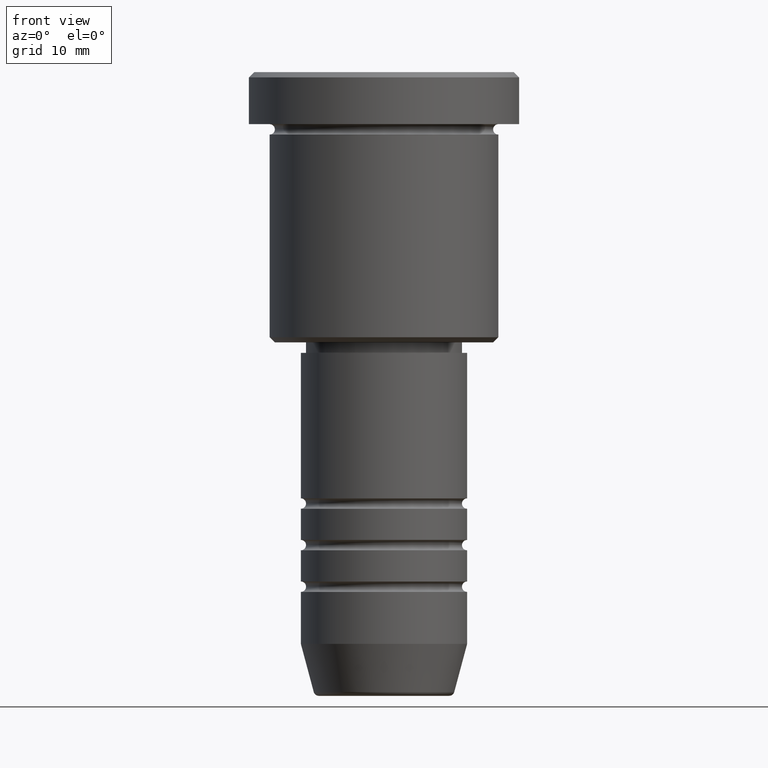
[diagram: clean part render]
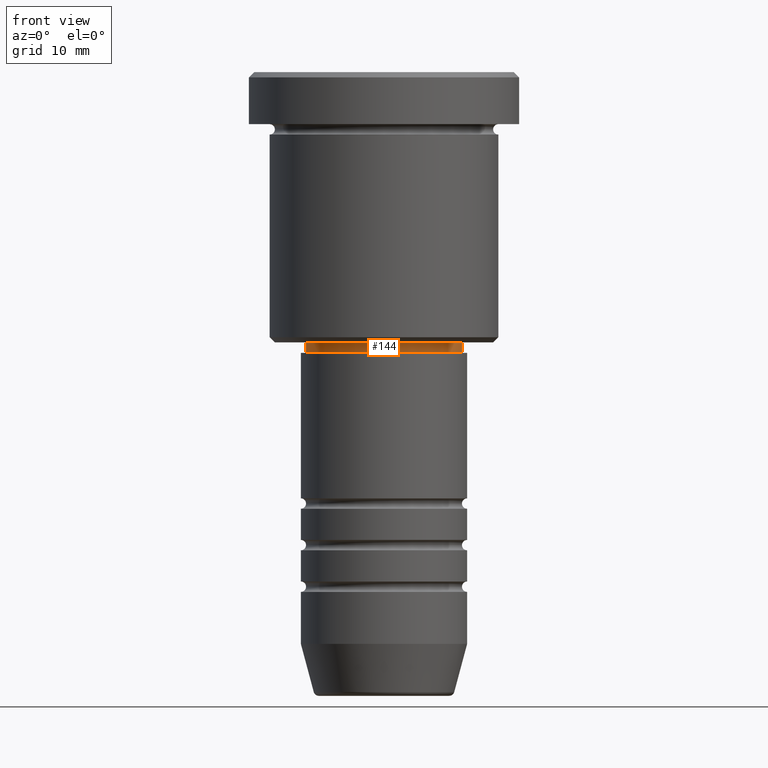
[diagram: same view with one face highlighted and labeled with its STEP entity id]
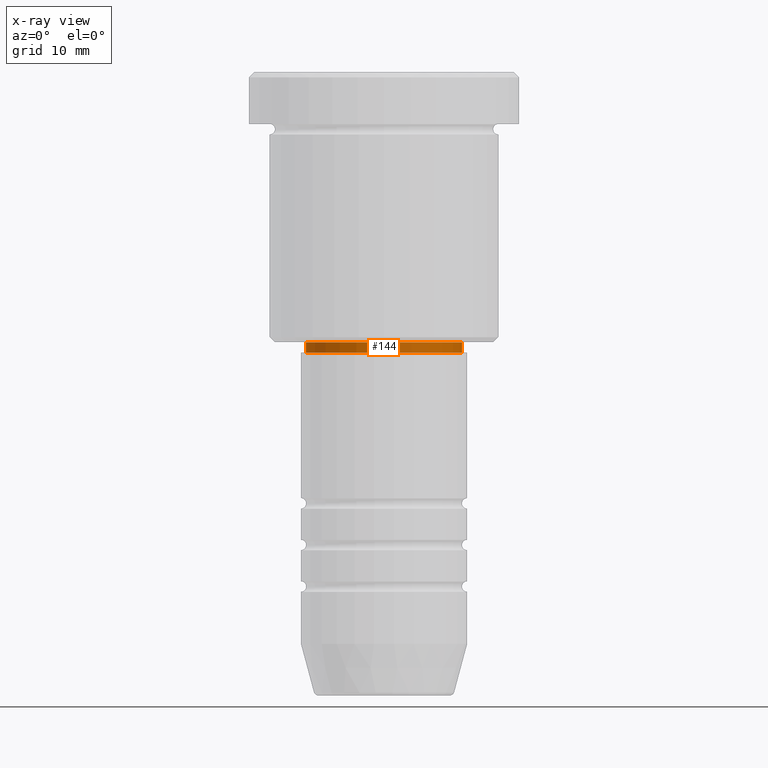
[diagram: x-ray of the same camera — body ghosted, the highlighted face saturated]
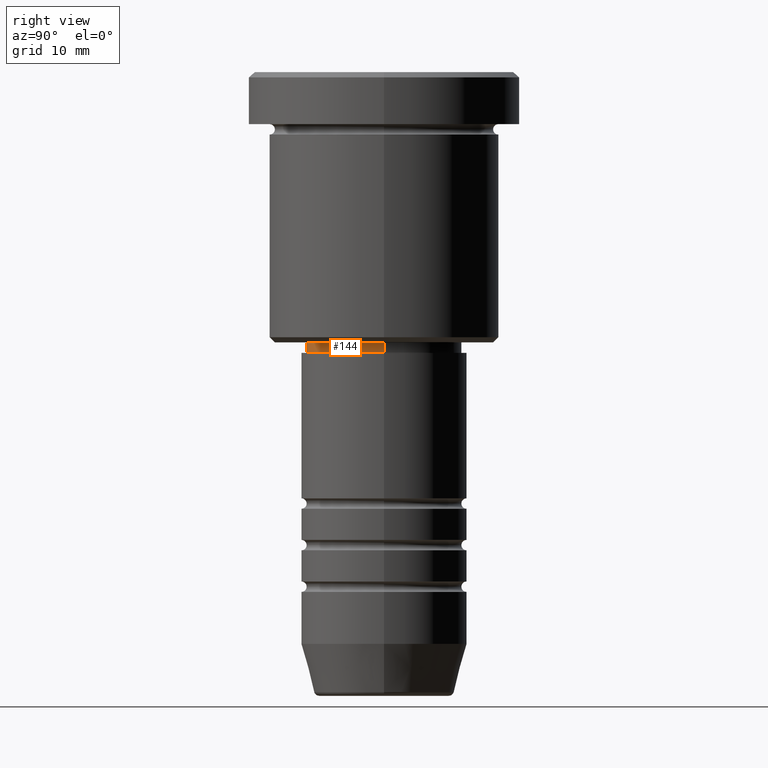
[diagram: same view with one face highlighted and labeled with its STEP entity id]
A machine part, front view. The second image highlights one B-rep face of the part: STEP entity #144.
The next image is the same camera in x-ray: the body ghosted, the highlighted face saturated — about 0% of this face is hidden behind the body in this view.
A second angle (right view) of the same face is appended — the face is thin or edge-on in the first view.
In plain terms, the highlighted cylindrical surface (partial cylindrical patch) has radius 7.5 mm, axis along (-0, -0, 1).
Its self-contained STEP definition (entity closure, byte-faithful):
#15 = VERTEX_POINT ( 'NONE', #373 ) ;
#18 = LINE ( 'NONE', #1118, #125 ) ;
#40 = DIRECTION ( 'NONE',  ( 1.000000000000000000, 0.000000000000000000, 0.000000000000000000 ) ) ;
#74 = DIRECTION ( 'NONE',  ( -0.000000000000000000, -0.000000000000000000, 1.000000000000000000 ) ) ;
#111 = EDGE_CURVE ( 'NONE', #858, #814, #613, .T. ) ;
#118 = CARTESIAN_POINT ( 'NONE',  ( -7.500000000000000000, 9.184850993605147944E-16, 0.000000000000000000 ) ) ;
#125 = VECTOR ( 'NONE', #393, 1000.000000000000000 ) ;
#144 = ADVANCED_FACE ( 'NONE', ( #524 ), #488, .T. ) ;
#174 = DIRECTION ( 'NONE',  ( 1.000000000000000000, 0.000000000000000000, 0.000000000000000000 ) ) ;
#182 = CARTESIAN_POINT ( 'NONE',  ( 0.000000000000000000, 0.000000000000000000, -26.00000000000000355 ) ) ;
#259 = CARTESIAN_POINT ( 'NONE',  ( 7.500000000000000000, 0.000000000000000000, -26.00000000000000355 ) ) ;
#292 = ORIENTED_EDGE ( 'NONE', *, *, #776, .F. ) ;
#367 = DIRECTION ( 'NONE',  ( 1.000000000000000000, 0.000000000000000000, 0.000000000000000000 ) ) ;
#373 = CARTESIAN_POINT ( 'NONE',  ( -7.500000000000000000, 9.184850993605147944E-16, -26.00000000000000355 ) ) ;
#392 = VERTEX_POINT ( 'NONE', #259 ) ;
#393 = DIRECTION ( 'NONE',  ( -0.000000000000000000, -0.000000000000000000, 1.000000000000000000 ) ) ;
#428 = VECTOR ( 'NONE', #1051, 1000.000000000000000 ) ;
#434 = DIRECTION ( 'NONE',  ( -0.000000000000000000, -0.000000000000000000, 1.000000000000000000 ) ) ;
#479 = CARTESIAN_POINT ( 'NONE',  ( -7.500000000000000000, 9.184850993605147944E-16, -27.00000000000000355 ) ) ;
#488 = CYLINDRICAL_SURFACE ( 'NONE', #787, 7.500000000000000000 ) ;
#498 = CIRCLE ( 'NONE', #598, 7.500000000000000000 ) ;
#524 = FACE_OUTER_BOUND ( 'NONE', #1117, .T. ) ;
#598 = AXIS2_PLACEMENT_3D ( 'NONE', #182, #74, #174 ) ;
#613 = CIRCLE ( 'NONE', #772, 7.500000000000000000 ) ;
#614 = ORIENTED_EDGE ( 'NONE', *, *, #111, .T. ) ;
#649 = CARTESIAN_POINT ( 'NONE',  ( 7.500000000000000000, 0.000000000000000000, -27.00000000000000355 ) ) ;
#662 = ORIENTED_EDGE ( 'NONE', *, *, #971, .T. ) ;
#700 = CARTESIAN_POINT ( 'NONE',  ( 0.000000000000000000, 0.000000000000000000, 0.000000000000000000 ) ) ;
#772 = AXIS2_PLACEMENT_3D ( 'NONE', #1114, #833, #367 ) ;
#776 = EDGE_CURVE ( 'NONE', #15, #392, #498, .T. ) ;
#787 = AXIS2_PLACEMENT_3D ( 'NONE', #700, #434, #40 ) ;
#814 = VERTEX_POINT ( 'NONE', #649 ) ;
#833 = DIRECTION ( 'NONE',  ( -0.000000000000000000, -0.000000000000000000, 1.000000000000000000 ) ) ;
#848 = LINE ( 'NONE', #118, #428 ) ;
#858 = VERTEX_POINT ( 'NONE', #479 ) ;
#888 = EDGE_CURVE ( 'NONE', #858, #15, #848, .T. ) ;
#971 = EDGE_CURVE ( 'NONE', #814, #392, #18, .T. ) ;
#1051 = DIRECTION ( 'NONE',  ( -0.000000000000000000, -0.000000000000000000, 1.000000000000000000 ) ) ;
#1106 = ORIENTED_EDGE ( 'NONE', *, *, #888, .F. ) ;
#1114 = CARTESIAN_POINT ( 'NONE',  ( 0.000000000000000000, 0.000000000000000000, -27.00000000000000355 ) ) ;
#1117 = EDGE_LOOP ( 'NONE', ( #1106, #614, #662, #292 ) ) ;
#1118 = CARTESIAN_POINT ( 'NONE',  ( 7.500000000000000000, 0.000000000000000000, 0.000000000000000000 ) ) ;